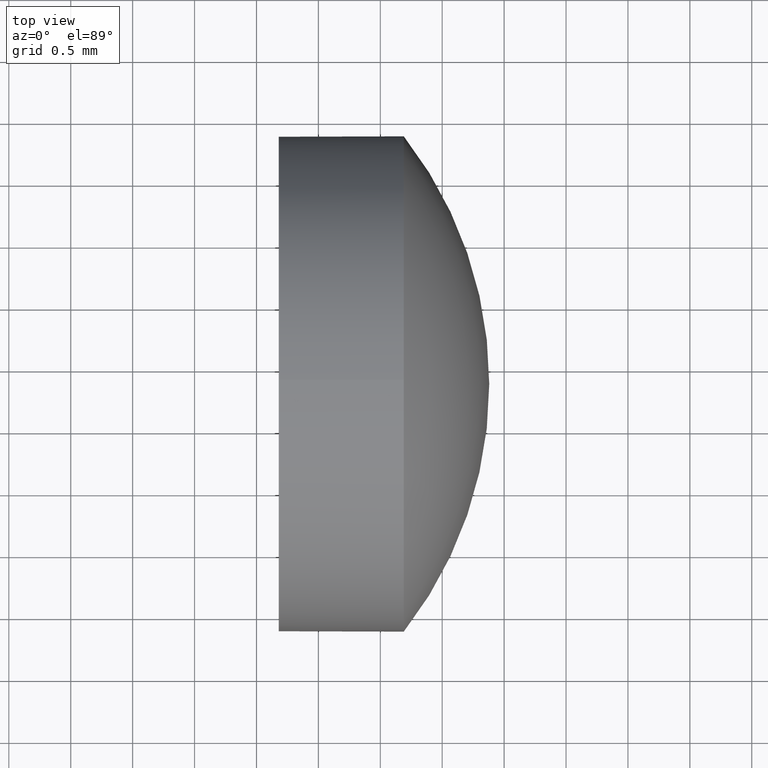
[diagram: clean part render]
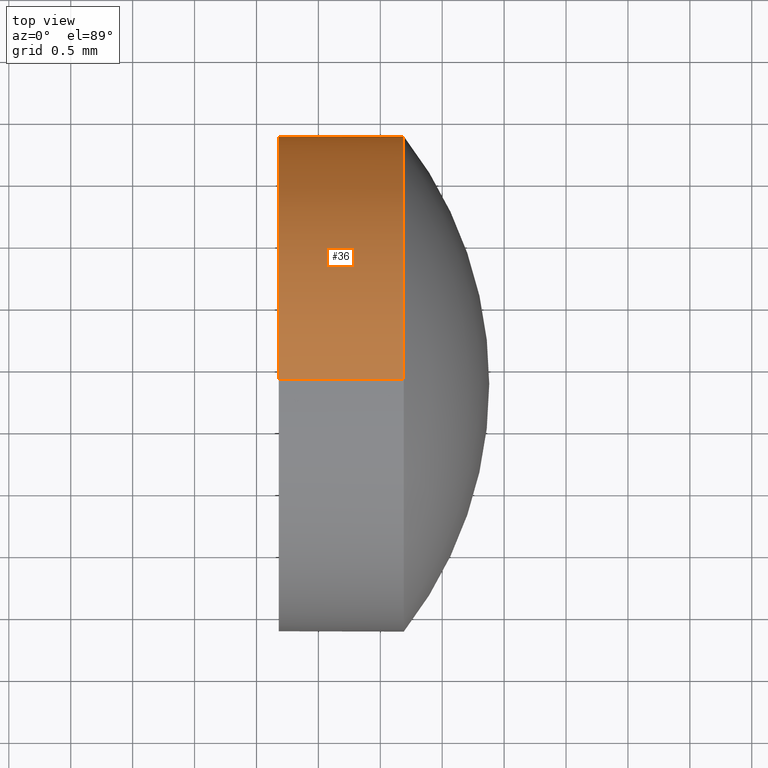
[diagram: same view with one face highlighted and labeled with its STEP entity id]
A machine part, top view. The second image highlights one B-rep face of the part: STEP entity #36.
In plain terms, the highlighted cylindrical surface (partial cylindrical patch) has radius 2 mm, axis along (-1, -0, -0).
Its self-contained STEP definition (entity closure, byte-faithful):
#2 = CIRCLE ( 'NONE', #41, 2.000000000000001800 ) ;
#4 = DIRECTION ( 'NONE',  ( -1.000000000000000000, -0.0000000000000000000, -0.0000000000000000000 ) ) ;
#5 = CARTESIAN_POINT ( 'NONE',  ( 506.1898674013084500, -76.13347349802080500, 0.0000000000000000000 ) ) ;
#11 = VERTEX_POINT ( 'NONE', #55 ) ;
#14 = LINE ( 'NONE', #15, #163 ) ;
#15 = CARTESIAN_POINT ( 'NONE',  ( 504.7499832645277100, -76.13347349802080500, -2.000000000000001800 ) ) ;
#17 = ORIENTED_EDGE ( 'NONE', *, *, #130, .F. ) ;
#25 = AXIS2_PLACEMENT_3D ( 'NONE', #5, #30, #105 ) ;
#27 = CARTESIAN_POINT ( 'NONE',  ( 506.1898674013084500, -76.13347349802080500, 2.000000000000001800 ) ) ;
#29 = CARTESIAN_POINT ( 'NONE',  ( 506.1898674013084500, -76.13347349802080500, 0.0000000000000000000 ) ) ;
#30 = DIRECTION ( 'NONE',  ( -1.000000000000000000, -0.0000000000000000000, -0.0000000000000000000 ) ) ;
#35 = CYLINDRICAL_SURFACE ( 'NONE', #109, 2.000000000000001800 ) ;
#36 = ADVANCED_FACE ( 'NONE', ( #52 ), #35, .T. ) ;
#39 = ORIENTED_EDGE ( 'NONE', *, *, #100, .F. ) ;
#41 = AXIS2_PLACEMENT_3D ( 'NONE', #29, #103, #58 ) ;
#45 = VERTEX_POINT ( 'NONE', #120 ) ;
#46 = CARTESIAN_POINT ( 'NONE',  ( 505.1798674013084000, -76.13347349802080500, -2.000000000000001800 ) ) ;
#49 = EDGE_CURVE ( 'NONE', #88, #160, #14, .T. ) ;
#52 = FACE_OUTER_BOUND ( 'NONE', #95, .T. ) ;
#54 = ORIENTED_EDGE ( 'NONE', *, *, #49, .T. ) ;
#55 = CARTESIAN_POINT ( 'NONE',  ( 506.1898674013084500, -74.13347349802079100, 0.0000000000000000000 ) ) ;
#58 = DIRECTION ( 'NONE',  ( 0.0000000000000000000, 0.0000000000000000000, 1.000000000000000000 ) ) ;
#69 = CIRCLE ( 'NONE', #25, 2.000000000000001800 ) ;
#77 = AXIS2_PLACEMENT_3D ( 'NONE', #90, #92, #93 ) ;
#87 = CARTESIAN_POINT ( 'NONE',  ( 504.7499832645277100, -76.13347349802080500, 0.0000000000000000000 ) ) ;
#88 = VERTEX_POINT ( 'NONE', #119 ) ;
#90 = CARTESIAN_POINT ( 'NONE',  ( 505.1798674013084000, -76.13347349802080500, 0.0000000000000000000 ) ) ;
#92 = DIRECTION ( 'NONE',  ( -1.000000000000000000, -0.0000000000000000000, -0.0000000000000000000 ) ) ;
#93 = DIRECTION ( 'NONE',  ( 0.0000000000000000000, 0.0000000000000000000, 1.000000000000000000 ) ) ;
#95 = EDGE_LOOP ( 'NONE', ( #159, #54, #39, #17, #137 ) ) ;
#97 = DIRECTION ( 'NONE',  ( -1.000000000000000000, -0.0000000000000000000, -0.0000000000000000000 ) ) ;
#98 = VERTEX_POINT ( 'NONE', #27 ) ;
#100 = EDGE_CURVE ( 'NONE', #45, #160, #116, .T. ) ;
#101 = DIRECTION ( 'NONE',  ( -1.000000000000000000, -0.0000000000000000000, -0.0000000000000000000 ) ) ;
#103 = DIRECTION ( 'NONE',  ( -1.000000000000000000, -0.0000000000000000000, -0.0000000000000000000 ) ) ;
#105 = DIRECTION ( 'NONE',  ( 0.0000000000000000000, 0.0000000000000000000, 1.000000000000000000 ) ) ;
#109 = AXIS2_PLACEMENT_3D ( 'NONE', #87, #101, #161 ) ;
#110 = LINE ( 'NONE', #139, #113 ) ;
#113 = VECTOR ( 'NONE', #97, 1000.000000000000000 ) ;
#116 = CIRCLE ( 'NONE', #77, 2.000000000000001800 ) ;
#119 = CARTESIAN_POINT ( 'NONE',  ( 506.1898674013084500, -76.13347349802080500, -2.000000000000001800 ) ) ;
#120 = CARTESIAN_POINT ( 'NONE',  ( 505.1798674013084000, -76.13347349802080500, 2.000000000000001800 ) ) ;
#130 = EDGE_CURVE ( 'NONE', #98, #45, #110, .T. ) ;
#137 = ORIENTED_EDGE ( 'NONE', *, *, #143, .T. ) ;
#139 = CARTESIAN_POINT ( 'NONE',  ( 504.7499832645277100, -76.13347349802080500, 2.000000000000001800 ) ) ;
#143 = EDGE_CURVE ( 'NONE', #98, #11, #69, .T. ) ;
#159 = ORIENTED_EDGE ( 'NONE', *, *, #164, .T. ) ;
#160 = VERTEX_POINT ( 'NONE', #46 ) ;
#161 = DIRECTION ( 'NONE',  ( 0.0000000000000000000, 0.0000000000000000000, 1.000000000000000000 ) ) ;
#163 = VECTOR ( 'NONE', #4, 1000.000000000000000 ) ;
#164 = EDGE_CURVE ( 'NONE', #11, #88, #2, .T. ) ;